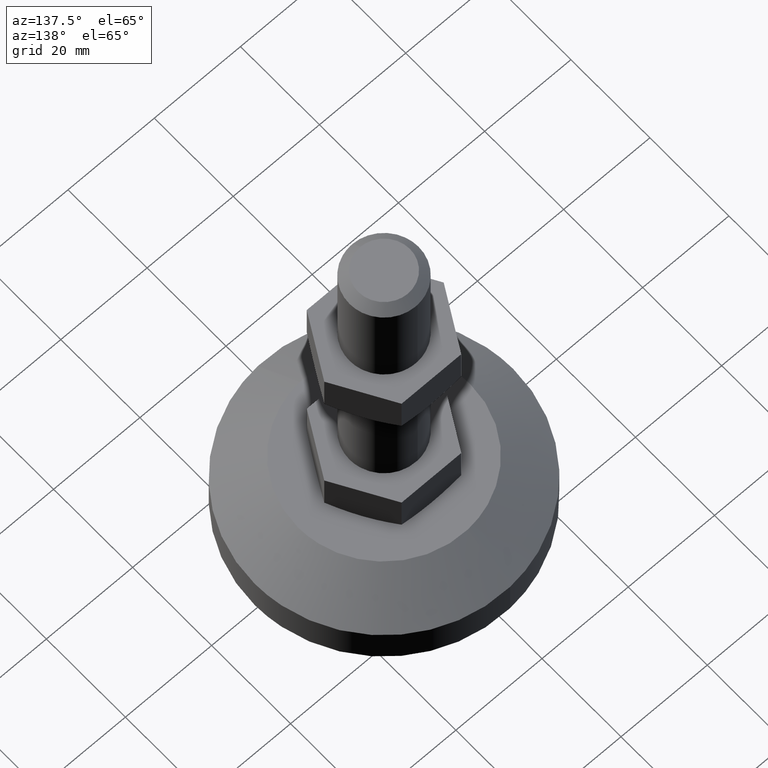
[diagram: clean part render]
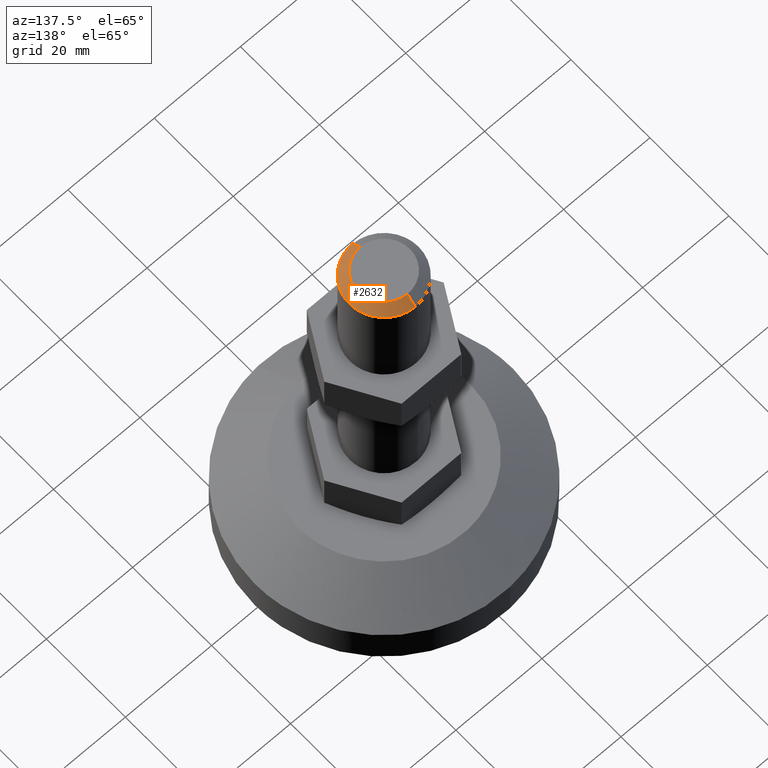
[diagram: same view with one face highlighted and labeled with its STEP entity id]
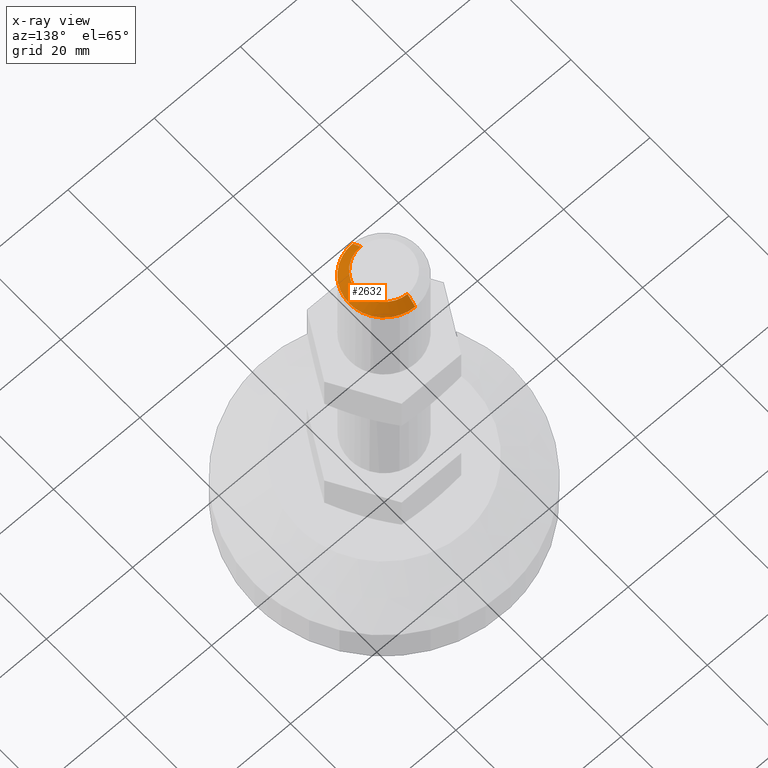
[diagram: x-ray of the same camera — body ghosted, the highlighted face saturated]
A machine part, auxiliary view. The second image highlights one B-rep face of the part: STEP entity #2632.
The next image is the same camera in x-ray: the body ghosted, the highlighted face saturated — about 0% of this face is hidden behind the body in this view.
In plain terms, the highlighted face is a freeform B-spline surface patch.
Its self-contained STEP definition (entity closure, byte-faithful):
#1528=CARTESIAN_POINT('',(-0.052359213405916,-5.999771538438058,91.999999999943341));
#1529=VERTEX_POINT('',#1528);
#1543=CARTESIAN_POINT('',(6.0,0.0,92.0));
#1544=VERTEX_POINT('',#1543);
#1545=CARTESIAN_POINT('',(-0.052359213405916,-5.999771538438058,91.999999999943341));
#1546=CARTESIAN_POINT('',(-0.026180105132303,-6.000000000056531,91.999999999943469));
#1547=CARTESIAN_POINT('',(-4.916956E-013,-6.000000000056407,91.999999999943583));
#1548=CARTESIAN_POINT('',(5.999999999999757,-6.000000000028082,91.999999999971919));
#1549=CARTESIAN_POINT('',(6.0,0.0,92.0));
#1557=(BOUNDED_CURVE()B_SPLINE_CURVE(2,(#1545,#1546,#1547,#1548,#1549),.UNSPECIFIED.,.F.,.U.)B_SPLINE_CURVE_WITH_KNOTS((3,2,3),(0.248460105652824,0.250000000000000,0.500000000000000),.UNSPECIFIED.)CURVE()GEOMETRIC_REPRESENTATION_ITEM()RATIONAL_B_SPLINE_CURVE((0.996414028072197,0.998195901552092,1.0,0.707106781186548,1.0))REPRESENTATION_ITEM(''));
#1558=EDGE_CURVE('',#1529,#1544,#1557,.T.);
#1560=CARTESIAN_POINT('',(0.052359213405914,5.999771538438061,91.999999999943327));
#1561=VERTEX_POINT('',#1560);
#1562=CARTESIAN_POINT('',(6.0,0.0,92.0));
#1563=CARTESIAN_POINT('',(6.000000000000249,5.947867263186600,91.999999999971678));
#1564=CARTESIAN_POINT('',(0.052359213405914,5.999771538438061,91.999999999943327));
#1572=(BOUNDED_CURVE()B_SPLINE_CURVE(2,(#1562,#1563,#1564),.UNSPECIFIED.,.F.,.U.)B_SPLINE_CURVE_WITH_KNOTS((3,3),(0.500000000000000,0.748460105652824),.UNSPECIFIED.)CURVE()GEOMETRIC_REPRESENTATION_ITEM()RATIONAL_B_SPLINE_CURVE((1.0,0.708910879634456,0.996414028072197))REPRESENTATION_ITEM(''));
#1573=EDGE_CURVE('',#1544,#1561,#1572,.T.);
#2515=CARTESIAN_POINT('',(-0.069812284496150,-7.999695384574759,89.999999999931788));
#2516=VERTEX_POINT('',#2515);
#2532=CARTESIAN_POINT('',(-0.052359213405916,-5.999771538438058,91.999999999943341));
#2533=CARTESIAN_POINT('',(-0.069812284496150,-7.999695384574759,89.999999999931788));
#2534=QUASI_UNIFORM_CURVE('',1,(#2532,#2533),.UNSPECIFIED.,.F.,.U.);
#2535=EDGE_CURVE('',#1529,#2516,#2534,.T.);
#2539=CARTESIAN_POINT('',(0.069812284496149,7.999695384574755,89.999999999931788));
#2540=VERTEX_POINT('',#2539);
#2541=CARTESIAN_POINT('',(0.052359213405914,5.999771538438061,91.999999999943327));
#2542=CARTESIAN_POINT('',(0.069812284496149,7.999695384574755,89.999999999931788));
#2543=QUASI_UNIFORM_CURVE('',1,(#2541,#2542),.UNSPECIFIED.,.F.,.U.);
#2544=EDGE_CURVE('',#1561,#2540,#2543,.T.);
#2571=CARTESIAN_POINT('',(0.051922886215325,5.949773442231799,92.050000000000011));
#2572=CARTESIAN_POINT('',(6.001696328447124,5.897850556016476,92.050000000000011));
#2573=CARTESIAN_POINT('',(5.949773442231799,-0.051922886215325,92.050000000000011));
#2574=CARTESIAN_POINT('',(5.897850556016476,-6.001696328447124,92.050000000000011));
#2575=CARTESIAN_POINT('',(-0.051922886215325,-5.949773442231799,92.050000000000011));
#2576=CARTESIAN_POINT('',(0.070259518931283,8.050943433070415,89.948749999999990));
#2577=CARTESIAN_POINT('',(8.121202952001699,7.980683914139132,89.948749999999990));
#2578=CARTESIAN_POINT('',(8.050943433070415,-0.070259518931283,89.948749999999990));
#2579=CARTESIAN_POINT('',(7.980683914139132,-8.121202952001699,89.948749999999990));
#2580=CARTESIAN_POINT('',(-0.070259518931283,-8.050943433070415,89.948749999999990));
#2588=(BOUNDED_SURFACE()B_SPLINE_SURFACE(2,1,((#2571,#2576),(#2572,#2577),(#2573,#2578),(#2574,#2579),(#2575,#2580)),.UNSPECIFIED.,.F.,.F.,.U.)B_SPLINE_SURFACE_WITH_KNOTS((3,2,3),(2,2),(0.0,13.339747776225540,26.679495552451069),(0.0,2.971616247936500),.UNSPECIFIED.)GEOMETRIC_REPRESENTATION_ITEM()RATIONAL_B_SPLINE_SURFACE(((1.0,1.0),(0.707106781186548,0.707106781186548),(1.0,1.0),(0.707106781186548,0.707106781186548),(1.0,1.0)))REPRESENTATION_ITEM('')SURFACE());
#2589=CARTESIAN_POINT('',(0.488379432670811,-7.985078930709759,90.0));
#2590=VERTEX_POINT('',#2589);
#2591=CARTESIAN_POINT('',(0.488379432670811,-7.985078930709759,90.0));
#2592=CARTESIAN_POINT('',(0.302561631399022,-7.996444516734597,89.999999999977376));
#2593=CARTESIAN_POINT('',(0.116345369862770,-8.001320671141436,89.999999999954312));
#2594=CARTESIAN_POINT('',(-0.069812284496150,-7.999695384574759,89.999999999931788));
#2595=B_SPLINE_CURVE_WITH_KNOTS('',3,(#2591,#2592,#2593,#2594),.UNSPECIFIED.,.F.,.U.,(4,4),(8.862511E-011,0.558498232983472),.UNSPECIFIED.);
#2596=EDGE_CURVE('',#2590,#2516,#2595,.T.);
#2597=ORIENTED_EDGE('',*,*,#2596,.F.);
#2598=CARTESIAN_POINT('',(8.0,0.0,90.0));
#2599=VERTEX_POINT('',#2598);
#2600=CARTESIAN_POINT('',(8.0,0.0,90.0));
#2601=CARTESIAN_POINT('',(7.999999999999849,-7.525656923372798,90.0));
#2602=CARTESIAN_POINT('',(0.488379432670811,-7.985078930709758,90.0));
#2610=(BOUNDED_CURVE()B_SPLINE_CURVE(2,(#2600,#2601,#2602),.UNSPECIFIED.,.F.,.U.)B_SPLINE_CURVE_WITH_KNOTS((3,3),(0.0,0.239333154204801),.UNSPECIFIED.)CURVE()GEOMETRIC_REPRESENTATION_ITEM()RATIONAL_B_SPLINE_CURVE((1.0,0.719603768384717,0.976072453086440))REPRESENTATION_ITEM(''));
#2611=EDGE_CURVE('',#2599,#2590,#2610,.T.);
#2612=ORIENTED_EDGE('',*,*,#2611,.F.);
#2613=CARTESIAN_POINT('',(0.069812284496149,7.999695384574755,89.999999999931788));
#2614=CARTESIAN_POINT('',(8.000000000000453,7.930489684288950,89.999999999965908));
#2615=CARTESIAN_POINT('',(8.0,0.0,90.0));
#2623=(BOUNDED_CURVE()B_SPLINE_CURVE(2,(#2613,#2614,#2615),.UNSPECIFIED.,.F.,.U.)B_SPLINE_CURVE_WITH_KNOTS((3,3),(0.751539894346178,1.0),.UNSPECIFIED.)CURVE()GEOMETRIC_REPRESENTATION_ITEM()RATIONAL_B_SPLINE_CURVE((0.996414028074507,0.708910879633286,1.0))REPRESENTATION_ITEM(''));
#2624=EDGE_CURVE('',#2540,#2599,#2623,.T.);
#2625=ORIENTED_EDGE('',*,*,#2624,.F.);
#2626=ORIENTED_EDGE('',*,*,#2544,.F.);
#2627=ORIENTED_EDGE('',*,*,#1573,.F.);
#2628=ORIENTED_EDGE('',*,*,#1558,.F.);
#2629=ORIENTED_EDGE('',*,*,#2535,.T.);
#2630=EDGE_LOOP('',(#2597,#2612,#2625,#2626,#2627,#2628,#2629));
#2631=FACE_OUTER_BOUND('',#2630,.T.);
#2632=ADVANCED_FACE('',(#2631),#2588,.T.);